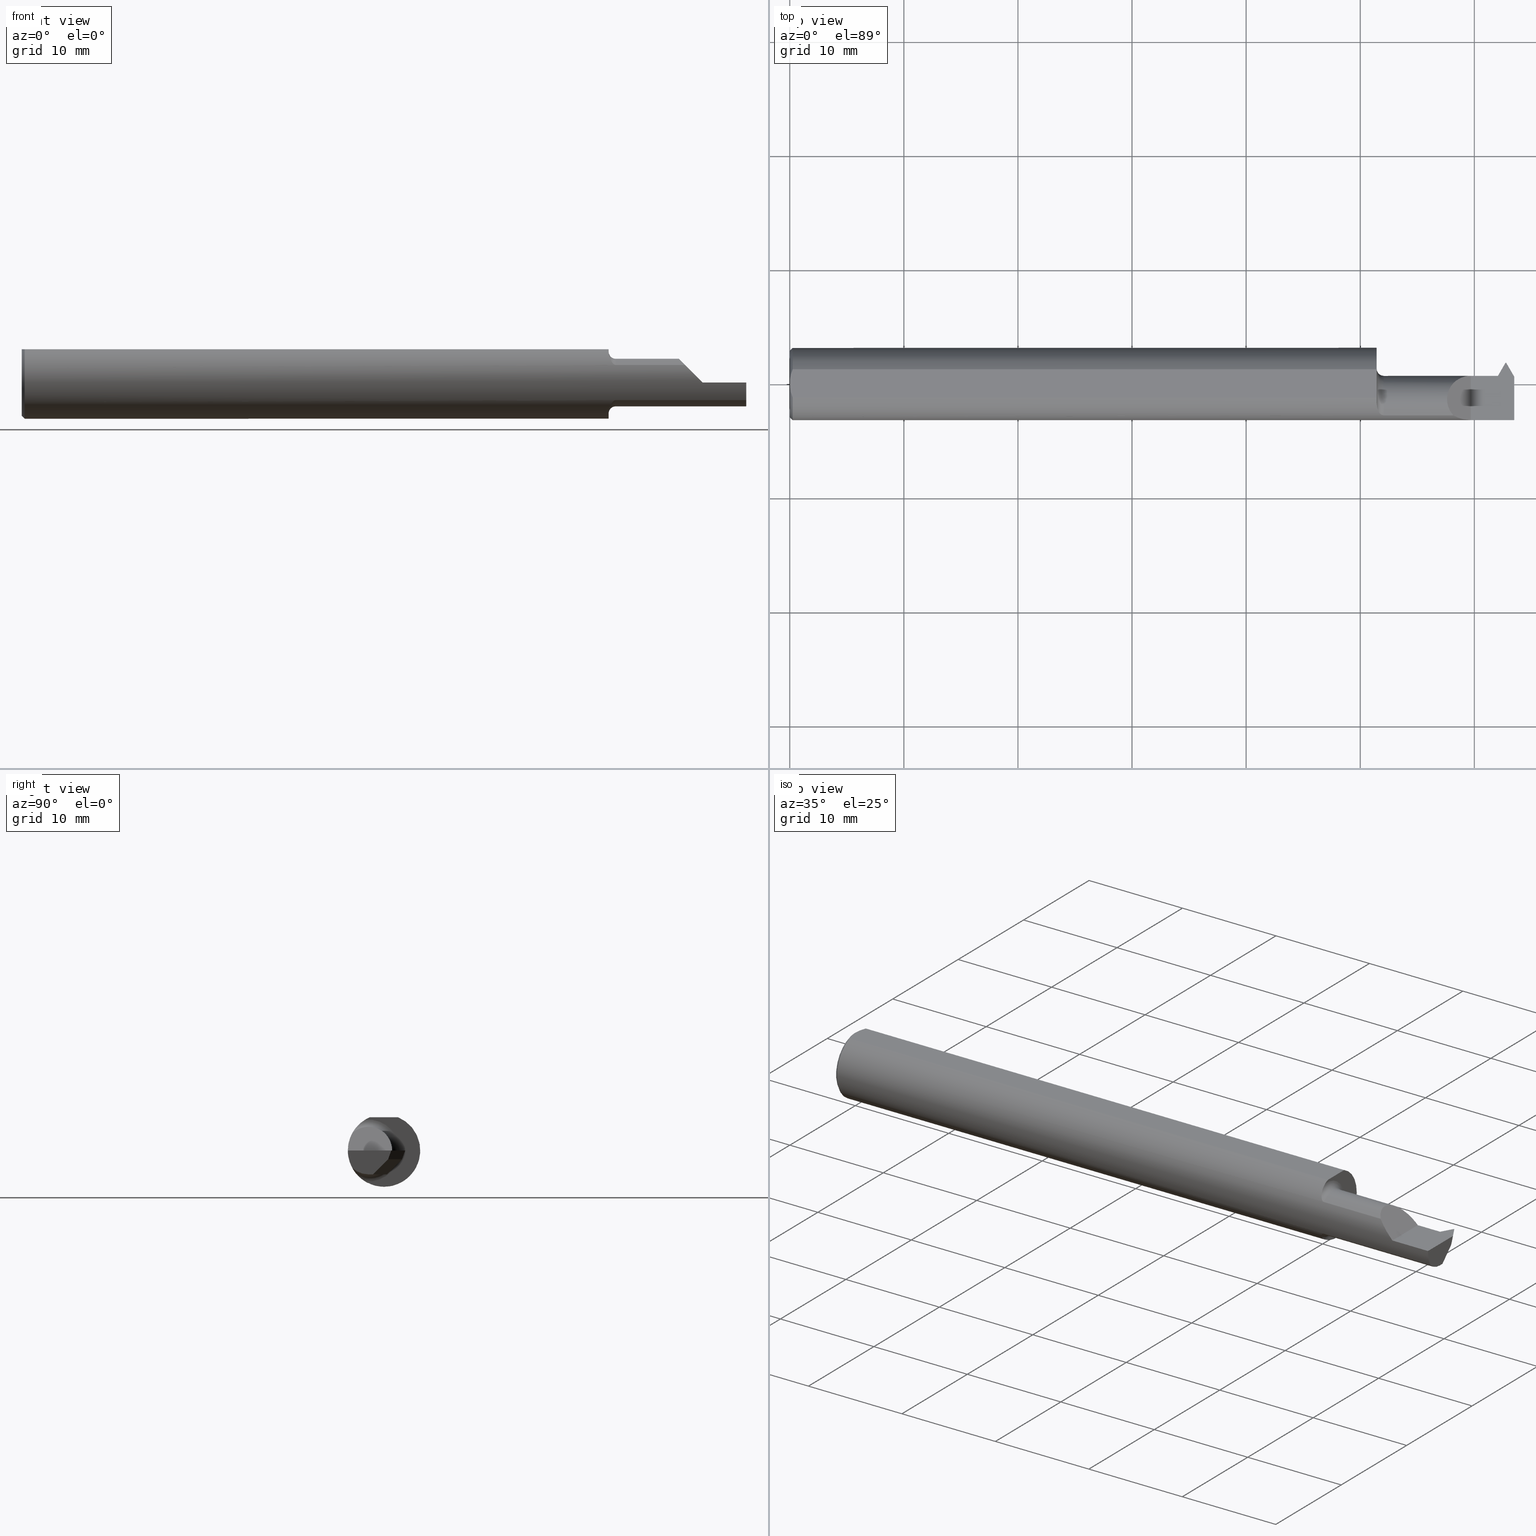
[diagram: canonical four-view strip — front | top / right | iso, engineering-drawing reading convention]
A machine part, canonical four-view strip (front | top / right | iso — engineering-drawing reading convention). The complete STEP part file that produces these views, byte-faithful:
ISO-10303-21;
HEADER;
FILE_DESCRIPTION (( 'STEP AP203' ),
    '1' );
FILE_NAME ('230232-TT200400.STEP',
    '2025-04-24T22:30:51',
    ( '' ),
    ( '' ),
    'SwSTEP 2.0',
    'SolidWorks 2024',
    '' );
FILE_SCHEMA (( 'CONFIG_CONTROL_DESIGN' ));
ENDSEC;

DATA;
#1 = CARTESIAN_POINT ( 'NONE',  ( 2.024999999999999911, 0.02814999999999995284, 5.817072295949924714E-17 ) ) ;
#2 = DIRECTION ( 'NONE',  ( -0.1021978390768674971, 0.1770118497048813744, 0.9788883525469466163 ) ) ;
#3 = CARTESIAN_POINT ( 'NONE',  ( 2.024999999999999911, 0.04895916665957469188, 0.1148499999999999521 ) ) ;
#4 = CC_DESIGN_SECURITY_CLASSIFICATION ( #440, ( #391 ) ) ;
#5 = LINE ( 'NONE', #127, #125 ) ;
#6 = DIRECTION ( 'NONE',  ( -1.000000000000000000, -0.000000000000000000, -0.000000000000000000 ) ) ;
#7 = ADVANCED_FACE ( 'NONE', ( #238 ), #593, .T. ) ;
#8 = VECTOR ( 'NONE', #6, 39.37007874015748143 ) ;
#9 = VECTOR ( 'NONE', #597, 39.37007874015748854 ) ;
#10 = CARTESIAN_POINT ( 'NONE',  ( 2.451234871023850737, -0.007219850294039730811, -0.06745093875106342174 ) ) ;
#11 = LINE ( 'NONE', #331, #278 ) ;
#12 = ORIENTED_EDGE ( 'NONE', *, *, #435, .T. ) ;
#13 = CARTESIAN_POINT ( 'NONE',  ( 2.453251230041400888, -0.03705956632386101651, -0.08200000000000008671 ) ) ;
#14 = CARTESIAN_POINT ( 'NONE',  ( 2.500000000000000000, 0.000000000000000000, 0.000000000000000000 ) ) ;
#15 = VERTEX_POINT ( 'NONE', #468 ) ;
#16 = EDGE_CURVE ( 'NONE', #765, #645, #353, .T. ) ;
#17 = ORIENTED_EDGE ( 'NONE', *, *, #363, .F. ) ;
#18 = CARTESIAN_POINT ( 'NONE',  ( 2.500000000000000000, -0.05384999999999960651, -0.08200000000000007283 ) ) ;
#19 = PLANE ( 'NONE',  #138 ) ;
#20 = ORIENTED_EDGE ( 'NONE', *, *, #344, .T. ) ;
#21 = TOROIDAL_SURFACE ( 'NONE', #396, 0.1070000000000000812, 0.02499999999999993894 ) ;
#22 = ORIENTED_EDGE ( 'NONE', *, *, #344, .F. ) ;
#23 = AXIS2_PLACEMENT_3D ( 'NONE', #324, #134, #621 ) ;
#24 = DIRECTION ( 'NONE',  ( -0.4999999999999901745, 0.000000000000000000, 0.8660254037844443697 ) ) ;
#25 = CARTESIAN_POINT ( 'NONE',  ( 2.033707043473947707, -0.1002470790731815053, -0.07460645910502548828 ) ) ;
#26 = VERTEX_POINT ( 'NONE', #349 ) ;
#27 = ORIENTED_EDGE ( 'NONE', *, *, #606, .T. ) ;
#28 = CARTESIAN_POINT ( 'NONE',  ( 2.289520233285355477, -0.1092232590529245567, 0.06047976671464379284 ) ) ;
#29 = CARTESIAN_POINT ( 'NONE',  ( 2.472290033225403416, 0.06223089297200574271, -0.03000000000000839148 ) ) ;
#30 = VERTEX_POINT ( 'NONE', #607 ) ;
#31 = ORIENTED_EDGE ( 'NONE', *, *, #423, .F. ) ;
#32 = APPROVAL_ROLE ( '' ) ;
#33 = CARTESIAN_POINT ( 'NONE',  ( 2.233393231723701522, -0.04792023988988743100, 0.1166067682762971930 ) ) ;
#34 = EDGE_LOOP ( 'NONE', ( #710, #643, #20, #328, #319, #268, #786, #406, #513, #318, #74, #377, #75 ) ) ;
#35 = ORIENTED_EDGE ( 'NONE', *, *, #657, .T. ) ;
#36 = APPROVAL_STATUS ( 'not_yet_approved' ) ;
#37 = AXIS2_PLACEMENT_3D ( 'NONE', #77, #267, #443 ) ;
#38 = PLANE ( 'NONE',  #571 ) ;
#39 = ORIENTED_EDGE ( 'NONE', *, *, #330, .T. ) ;
#40 = APPROVAL_DATE_TIME ( #334, #654 ) ;
#41 = LINE ( 'NONE', #725, #741 ) ;
#42 = B_SPLINE_CURVE_WITH_KNOTS ( 'NONE', 3,
 ( #481, #728, #204, #694, #383, #447 ),
 .UNSPECIFIED., .F., .F.,
 ( 4, 2, 4 ),
 ( 0.001059891666211653424, 0.001694300407100094883, 0.002328709147988536343 ),
 .UNSPECIFIED. ) ;
#43 = ORIENTED_EDGE ( 'NONE', *, *, #313, .F. ) ;
#44 = VERTEX_POINT ( 'NONE', #715 ) ;
#45 = EDGE_CURVE ( 'NONE', #346, #203, #547, .T. ) ;
#46 = COORDINATED_UNIVERSAL_TIME_OFFSET ( 8, 0, .BEHIND. ) ;
#47 = DIRECTION ( 'NONE',  ( 0.000000000000000000, -0.3420201433256622736, -0.9396926207859106484 ) ) ;
#48 = DIRECTION ( 'NONE',  ( -0.000000000000000000, 1.000000000000000000, -0.000000000000000000 ) ) ;
#49 = EDGE_LOOP ( 'NONE', ( #283, #385, #700 ) ) ;
#50 = PERSON_AND_ORGANIZATION_ROLE ( 'creator' ) ;
#51 = DIRECTION ( 'NONE',  ( -0.4999999999999969469, 0.8660254037844403729, 0.000000000000000000 ) ) ;
#52 = VECTOR ( 'NONE', #308, 39.37007874015748143 ) ;
#53 = DIRECTION ( 'NONE',  ( 0.9947640934854949935, 0.01818544582510317129, 0.1005668328631451197 ) ) ;
#54 = AXIS2_PLACEMENT_3D ( 'NONE', #101, #781, #533 ) ;
#55 = FACE_OUTER_BOUND ( 'NONE', #599, .T. ) ;
#56 = DIRECTION ( 'NONE',  ( 1.860231797550329107E-16, -1.000000000000000000, 0.000000000000000000 ) ) ;
#57 = ADVANCED_FACE ( 'NONE', ( #598 ), #38, .F. ) ;
#58 = DIRECTION ( 'NONE',  ( 0.7745966692414858468, 0.4472135954999558183, -0.4472135954999557628 ) ) ;
#59 = FACE_OUTER_BOUND ( 'NONE', #516, .T. ) ;
#60 = LOCAL_TIME ( 15, 30, 51.00000000000000000, #46 ) ;
#61 = EDGE_CURVE ( 'NONE', #279, #203, #414, .T. ) ;
#62 = CARTESIAN_POINT ( 'NONE',  ( 0.000000000000000000, 0.000000000000000000, 0.000000000000000000 ) ) ;
#63 = DIRECTION ( 'NONE',  ( 0.4999999999999965583, 0.8660254037844405950, -0.000000000000000000 ) ) ;
#64 = LINE ( 'NONE', #189, #52 ) ;
#65 = EDGE_CURVE ( 'NONE', #26, #269, #779, .T. ) ;
#66 = FACE_OUTER_BOUND ( 'NONE', #218, .T. ) ;
#67 = CARTESIAN_POINT ( 'NONE',  ( 0.000000000000000000, 0.000000000000000000, 0.000000000000000000 ) ) ;
#68 = DIRECTION ( 'NONE',  ( -0.01827811026638627781, 0.9998329413882549588, 0.000000000000000000 ) ) ;
#69 = AXIS2_PLACEMENT_3D ( 'NONE', #317, #626, #145 ) ;
#70 = ORIENTED_EDGE ( 'NONE', *, *, #384, .T. ) ;
#71 =( BOUNDED_CURVE ( )  B_SPLINE_CURVE ( 3, ( #446, #197, #693, #28 ),
 .UNSPECIFIED., .F., .F. ) 
 B_SPLINE_CURVE_WITH_KNOTS ( ( 4, 4 ),
 ( 4.712388980384689674, 5.218088401039803870 ),
 .UNSPECIFIED. ) 
 CURVE ( )  GEOMETRIC_REPRESENTATION_ITEM ( )  RATIONAL_B_SPLINE_CURVE ( ( 1.000000000000000000, 0.9788023059027125550, 0.9788023059027125550, 1.000000000000000000 ) ) 
 REPRESENTATION_ITEM ( '' )  );
#72 = CARTESIAN_POINT ( 'NONE',  ( 2.024999999999999911, -0.06535139275765998457, 0.1063800637555461642 ) ) ;
#73 = EDGE_CURVE ( 'NONE', #164, #381, #650, .T. ) ;
#74 = ORIENTED_EDGE ( 'NONE', *, *, #61, .F. ) ;
#75 = ORIENTED_EDGE ( 'NONE', *, *, #330, .F. ) ;
#76 = LINE ( 'NONE', #211, #474 ) ;
#77 = CARTESIAN_POINT ( 'NONE',  ( 2.049999999999999822, -0.05385000000000013387, 0.000000000000000000 ) ) ;
#78 = EDGE_LOOP ( 'NONE', ( #389, #326, #39, #200 ) ) ;
#79 = ADVANCED_FACE ( 'NONE', ( #113 ), #21, .F. ) ;
#80 = DIRECTION ( 'NONE',  ( 0.001253963230750516867, 0.3420198744252525569, 0.9396918819881070473 ) ) ;
#81 = CARTESIAN_POINT ( 'NONE',  ( 2.028216217036756586, -0.08893970397226937108, -0.08781254252886035172 ) ) ;
#82 = ORIENTED_EDGE ( 'NONE', *, *, #675, .T. ) ;
#83 = ORIENTED_EDGE ( 'NONE', *, *, #506, .T. ) ;
#84 = VECTOR ( 'NONE', #114, 39.37007874015748143 ) ;
#85 = CARTESIAN_POINT ( 'NONE',  ( 2.453558178717973437, -0.05385000000000006448, -0.08200000000000008671 ) ) ;
#86 = ORIENTED_EDGE ( 'NONE', *, *, #460, .T. ) ;
#87 = ORIENTED_EDGE ( 'NONE', *, *, #266, .T. ) ;
#88 = COORDINATED_UNIVERSAL_TIME_OFFSET ( 8, 0, .BEHIND. ) ;
#89 = EDGE_CURVE ( 'NONE', #44, #623, #729, .T. ) ;
#90 = CARTESIAN_POINT ( 'NONE',  ( 2.638030381068564800, -0.05384999999999960651, -0.08200000000000007283 ) ) ;
#91 = VERTEX_POINT ( 'NONE', #726 ) ;
#92 = VERTEX_POINT ( 'NONE', #116 ) ;
#93 = CALENDAR_DATE ( 2025, 24, 4 ) ;
#94 = CARTESIAN_POINT ( 'NONE',  ( 0.000000000000000000, -0.04895916665957469188, 0.1148499999999999521 ) ) ;
#95 = APPROVAL_PERSON_ORGANIZATION ( #157, #483, #711 ) ;
#96 = LINE ( 'NONE', #342, #166 ) ;
#97 = ORIENTED_EDGE ( 'NONE', *, *, #65, .F. ) ;
#98 = DATE_TIME_ROLE ( 'classification_date' ) ;
#99 = VECTOR ( 'NONE', #723, 39.37007874015748143 ) ;
#100 = AXIS2_PLACEMENT_3D ( 'NONE', #581, #787, #478 ) ;
#101 = CARTESIAN_POINT ( 'NONE',  ( 2.454384911711299466, -2.391462833681099021, 0.3325315713287227415 ) ) ;
#102 = CARTESIAN_POINT ( 'NONE',  ( 2.024999999999999911, -0.05385000000000014081, 0.000000000000000000 ) ) ;
#103 = EDGE_CURVE ( 'NONE', #143, #30, #661, .T. ) ;
#104 = ORIENTED_EDGE ( 'NONE', *, *, #313, .T. ) ;
#105 = PERSON_AND_ORGANIZATION_ROLE ( 'creator' ) ;
#106 = DIRECTION ( 'NONE',  ( 0.4999999999999948375, -0.8660254037844417052, 0.000000000000000000 ) ) ;
#107 = FACE_OUTER_BOUND ( 'NONE', #412, .T. ) ;
#108 = ADVANCED_FACE ( 'NONE', ( #790 ), #464, .F. ) ;
#109 = VERTEX_POINT ( 'NONE', #665 ) ;
#110 = PERSON_AND_ORGANIZATION ( #350, #433 ) ;
#111 = EDGE_CURVE ( 'NONE', #757, #346, #231, .T. ) ;
#112 = CARTESIAN_POINT ( 'NONE',  ( 2.446976212146491303, 0.02220744610134825839, -0.03064742880798467309 ) ) ;
#113 = FACE_OUTER_BOUND ( 'NONE', #78, .T. ) ;
#114 = DIRECTION ( 'NONE',  ( -0.4999999999999901745, -0.8660254037844443697, 0.000000000000000000 ) ) ;
#115 = VECTOR ( 'NONE', #312, 39.37007874015748143 ) ;
#116 = CARTESIAN_POINT ( 'NONE',  ( 2.289520233285355477, -0.1092232590529245567, 0.06047976671464379284 ) ) ;
#117 = AXIS2_PLACEMENT_3D ( 'NONE', #417, #659, #161 ) ;
#118 = FACE_OUTER_BOUND ( 'NONE', #582, .T. ) ;
#119 = PRODUCT_DEFINITION ( 'UNKNOWN', '', #391, #583 ) ;
#120 = CARTESIAN_POINT ( 'NONE',  ( 2.500000000000000000, 0.000000000000000000, 0.000000000000000000 ) ) ;
#121 = CARTESIAN_POINT ( 'NONE',  ( 0.01000000000000014939, 0.04895916665957469188, 0.1148499999999999521 ) ) ;
#122 = LINE ( 'NONE', #731, #305 ) ;
#123 = CARTESIAN_POINT ( 'NONE',  ( 2.472246112513392990, 0.07421031632221902763, 0.002913195152776099431 ) ) ;
#124 = AXIS2_PLACEMENT_3D ( 'NONE', #555, #245, #486 ) ;
#125 = VECTOR ( 'NONE', #180, 39.37007874015748143 ) ;
#126 = ADVANCED_FACE ( 'NONE', ( #107 ), #788, .T. ) ;
#127 = CARTESIAN_POINT ( 'NONE',  ( 2.469709966774594534, 0.06223089297202252096, -0.02999999999999161324 ) ) ;
#128 = CYLINDRICAL_SURFACE ( 'NONE', #669, 0.1248500000000000026 ) ;
#129 = APPLICATION_CONTEXT ( 'configuration controlled 3d designs of mechanical parts and assemblies' ) ;
#130 = FACE_OUTER_BOUND ( 'NONE', #230, .T. ) ;
#131 =( BOUNDED_CURVE ( )  B_SPLINE_CURVE ( 3, ( #549, #796, #738, #487 ),
 .UNSPECIFIED., .F., .F. ) 
 B_SPLINE_CURVE_WITH_KNOTS ( ( 4, 4 ),
 ( 3.543943011109409458, 3.546790974617836323 ),
 .UNSPECIFIED. ) 
 CURVE ( )  GEOMETRIC_REPRESENTATION_ITEM ( )  RATIONAL_B_SPLINE_CURVE ( ( 1.000000000000000000, 0.9999993240921020154, 0.9999993240921020154, 1.000000000000000000 ) ) 
 REPRESENTATION_ITEM ( '' )  );
#132 = DIRECTION ( 'NONE',  ( 0.000000000000000000, 1.000000000000000000, 0.000000000000000000 ) ) ;
#133 = ORIENTED_EDGE ( 'NONE', *, *, #226, .T. ) ;
#134 = DIRECTION ( 'NONE',  ( 0.000000000000000000, 0.000000000000000000, 1.000000000000000000 ) ) ;
#135 = EDGE_CURVE ( 'NONE', #109, #381, #96, .T. ) ;
#136 = CARTESIAN_POINT ( 'NONE',  ( 2.027023439373509817, -0.08470251846230676673, -0.09191816578021566597 ) ) ;
#137 = ORIENTED_EDGE ( 'NONE', *, *, #61, .T. ) ;
#138 = AXIS2_PLACEMENT_3D ( 'NONE', #14, #496, #745 ) ;
#139 = VECTOR ( 'NONE', #255, 39.37007874015748143 ) ;
#140 = ORIENTED_EDGE ( 'NONE', *, *, #355, .F. ) ;
#141 = CARTESIAN_POINT ( 'NONE',  ( 0.000000000000000000, 0.000000000000000000, 0.000000000000000000 ) ) ;
#142 = CARTESIAN_POINT ( 'NONE',  ( 2.024999999999999911, -0.07054286491584008112, -0.1031908389701643725 ) ) ;
#143 = VERTEX_POINT ( 'NONE', #282 ) ;
#144 = ORIENTED_EDGE ( 'NONE', *, *, #577, .T. ) ;
#145 = DIRECTION ( 'NONE',  ( -0.7071067811865511255, 0.000000000000000000, 0.7071067811865439090 ) ) ;
#146 = EDGE_LOOP ( 'NONE', ( #438, #160, #580, #773, #35, #566 ) ) ;
#147 = ORIENTED_EDGE ( 'NONE', *, *, #169, .F. ) ;
#148 =( CONVERSION_BASED_UNIT ( 'INCH', #633 ) LENGTH_UNIT ( ) NAMED_UNIT ( #286 ) );
#149 = CARTESIAN_POINT ( 'NONE',  ( 2.049999999999999822, -0.1092232590529244457, -0.06047976671464396631 ) ) ;
#150 = VERTEX_POINT ( 'NONE', #655 ) ;
#151 = EDGE_CURVE ( 'NONE', #338, #322, #688, .T. ) ;
#152 = ORIENTED_EDGE ( 'NONE', *, *, #724, .T. ) ;
#153 = AXIS2_PLACEMENT_3D ( 'NONE', #184, #432, #372 ) ;
#154 = CARTESIAN_POINT ( 'NONE',  ( -3.937007874019685528E-05, 0.06223089297201413878, -0.02999999999999999542 ) ) ;
#155 = ORIENTED_EDGE ( 'NONE', *, *, #763, .F. ) ;
#156 = ORIENTED_EDGE ( 'NONE', *, *, #551, .T. ) ;
#157 = PERSON_AND_ORGANIZATION ( #350, #433 ) ;
#158 = LINE ( 'NONE', #418, #795 ) ;
#159 = DIRECTION ( 'NONE',  ( 0.000000000000000000, 0.000000000000000000, -1.000000000000000000 ) ) ;
#160 = ORIENTED_EDGE ( 'NONE', *, *, #251, .T. ) ;
#161 = DIRECTION ( 'NONE',  ( 1.000000000000000000, 0.000000000000000000, 0.000000000000000000 ) ) ;
#162 = LINE ( 'NONE', #172, #263 ) ;
#163 = DIRECTION ( 'NONE',  ( 0.000000000000000000, 0.000000000000000000, 1.000000000000000000 ) ) ;
#164 = VERTEX_POINT ( 'NONE', #241 ) ;
#165 = APPROVAL_STATUS ( 'not_yet_approved' ) ;
#166 = VECTOR ( 'NONE', #588, 39.37007874015748143 ) ;
#167 = CARTESIAN_POINT ( 'NONE',  ( 2.500000000000000000, 0.02508559008996252837, 0.000000000000000000 ) ) ;
#168 = DIRECTION ( 'NONE',  ( -1.000000000000000000, -0.000000000000000000, -0.000000000000000000 ) ) ;
#169 = EDGE_CURVE ( 'NONE', #749, #392, #371, .T. ) ;
#170 = EDGE_LOOP ( 'NONE', ( #632, #575, #769 ) ) ;
#171 = B_SPLINE_CURVE_WITH_KNOTS ( 'NONE', 3,
 ( #775, #722, #586, #233 ),
 .UNSPECIFIED., .F., .F.,
 ( 4, 4 ),
 ( 0.002328709147988536343, 0.003597800360742826626 ),
 .UNSPECIFIED. ) ;
#172 = CARTESIAN_POINT ( 'NONE',  ( 2.500000000000000000, 0.000000000000000000, -0.08200000000000007283 ) ) ;
#173 = VERTEX_POINT ( 'NONE', #553 ) ;
#174 = CARTESIAN_POINT ( 'NONE',  ( 2.289520233285355477, -0.1092232590529245567, 0.06047976671464379284 ) ) ;
#175 = CARTESIAN_POINT ( 'NONE',  ( 2.500000000000000000, 0.000000000000000000, 0.000000000000000000 ) ) ;
#176 = CARTESIAN_POINT ( 'NONE',  ( 2.446901295964723833, -0.02341930401921291788, -0.07614442029541586276 ) ) ;
#177 = VECTOR ( 'NONE', #572, 39.37007874015748143 ) ;
#178 = LINE ( 'NONE', #249, #508 ) ;
#179 = DIRECTION ( 'NONE',  ( 1.000000000000000000, 0.000000000000000000, 0.000000000000000000 ) ) ;
#180 = DIRECTION ( 'NONE',  ( 4.801527401526620407E-15, -0.7071067811865433539, -0.7071067811865516806 ) ) ;
#181 = CARTESIAN_POINT ( 'NONE',  ( 2.427837500586933484, 0.02295711951836851977, -0.02871700526327665773 ) ) ;
#182 = EDGE_CURVE ( 'NONE', #333, #635, #301, .T. ) ;
#183 = LOCAL_TIME ( 15, 30, 51.00000000000000000, #347 ) ;
#184 = CARTESIAN_POINT ( 'NONE',  ( 2.024999999999999911, 0.000000000000000000, 0.000000000000000000 ) ) ;
#185 = CARTESIAN_POINT ( 'NONE',  ( 2.472290033225402972, 0.01023089297201466331, -0.08200000000000007283 ) ) ;
#186 = VECTOR ( 'NONE', #48, 39.37007874015748143 ) ;
#187 = AXIS2_PLACEMENT_3D ( 'NONE', #309, #485, #608 ) ;
#188 = DIRECTION ( 'NONE',  ( -1.000000000000000000, -0.000000000000000000, -0.000000000000000000 ) ) ;
#189 = CARTESIAN_POINT ( 'NONE',  ( 2.433030381068565173, 0.02814999999999999447, 3.269571062426245434E-34 ) ) ;
#190 = ADVANCED_FACE ( 'NONE', ( #59 ), #546, .T. ) ;
#191 = ORIENTED_EDGE ( 'NONE', *, *, #714, .T. ) ;
#192 = CARTESIAN_POINT ( 'NONE',  ( 2.028207506445967478, -0.08891621056625811925, 0.08783733555405218163 ) ) ;
#193 = FACE_OUTER_BOUND ( 'NONE', #502, .T. ) ;
#194 = CC_DESIGN_APPROVAL ( #712, ( #440 ) ) ;
#195 = EDGE_LOOP ( 'NONE', ( #83, #510, #137, #219, #43 ) ) ;
#196 = EDGE_CURVE ( 'NONE', #645, #109, #609, .T. ) ;
#197 = CARTESIAN_POINT ( 'NONE',  ( 2.328727073528534586, -0.1248500000000000026, 0.02127292647146524981 ) ) ;
#198 = CC_DESIGN_DATE_AND_TIME_ASSIGNMENT ( #701, #707, ( #119 ) ) ;
#199 = CARTESIAN_POINT ( 'NONE',  ( 2.427837500586933484, 0.02295711951836851977, -0.02871700526327665773 ) ) ;
#200 = ORIENTED_EDGE ( 'NONE', *, *, #151, .F. ) ;
#201 = AXIS2_PLACEMENT_3D ( 'NONE', #421, #479, #229 ) ;
#202 = AXIS2_PLACEMENT_3D ( 'NONE', #304, #673, #552 ) ;
#203 = VERTEX_POINT ( 'NONE', #121 ) ;
#204 = CARTESIAN_POINT ( 'NONE',  ( 0.004414493321357296045, -0.03313351293251454166, 0.1148499999999999660 ) ) ;
#205 = ORIENTED_EDGE ( 'NONE', *, *, #169, .T. ) ;
#206 = ORIENTED_EDGE ( 'NONE', *, *, #196, .F. ) ;
#207 = DIRECTION ( 'NONE',  ( 0.000000000000000000, 0.000000000000000000, -1.000000000000000000 ) ) ;
#208 = CARTESIAN_POINT ( 'NONE',  ( 2.556730127439881706, -0.7361911692617133518, -0.9791454017888142625 ) ) ;
#209 = EDGE_CURVE ( 'NONE', #501, #279, #681, .T. ) ;
#210 = ORIENTED_EDGE ( 'NONE', *, *, #565, .F. ) ;
#211 = CARTESIAN_POINT ( 'NONE',  ( 2.469746116444452522, 0.07209075587864717527, -0.002910249305106944653 ) ) ;
#212 = CARTESIAN_POINT ( 'NONE',  ( 2.044143490399572105, -0.1083244193956947182, -0.06211342568700094907 ) ) ;
#213 = ORIENTED_EDGE ( 'NONE', *, *, #606, .F. ) ;
#214 = ORIENTED_EDGE ( 'NONE', *, *, #135, .F. ) ;
#215 = CONICAL_SURFACE ( 'NONE', #345, 0.1148500000000000076, 0.7853981633974407295 ) ;
#216 = COORDINATED_UNIVERSAL_TIME_OFFSET ( 8, 0, .BEHIND. ) ;
#217 = LINE ( 'NONE', #718, #9 ) ;
#218 = EDGE_LOOP ( 'NONE', ( #777, #291, #12, #579 ) ) ;
#219 = ORIENTED_EDGE ( 'NONE', *, *, #435, .F. ) ;
#220 = ADVANCED_FACE ( 'NONE', ( #620 ), #743, .F. ) ;
#221 = PERSON_AND_ORGANIZATION ( #350, #433 ) ;
#222 = PLANE ( 'NONE',  #54 ) ;
#223 = CARTESIAN_POINT ( 'NONE',  ( -3.937007874019685528E-05, 0.06223089297201413878, -0.02999999999999999542 ) ) ;
#224 = VERTEX_POINT ( 'NONE', #732 ) ;
#225 = PERSON_AND_ORGANIZATION_ROLE ( 'classification_officer' ) ;
#226 = EDGE_CURVE ( 'NONE', #264, #173, #639, .T. ) ;
#227 = CARTESIAN_POINT ( 'NONE',  ( 2.450332701925785450, -0.01228205133668632335, -0.07095053707884173277 ) ) ;
#228 = CC_DESIGN_PERSON_AND_ORGANIZATION_ASSIGNMENT ( #717, #663, ( #391 ) ) ;
#229 = DIRECTION ( 'NONE',  ( -1.860231797550329354E-16, 1.000000000000000000, 0.000000000000000000 ) ) ;
#230 = EDGE_LOOP ( 'NONE', ( #401, #86, #398, #104 ) ) ;
#231 = CIRCLE ( 'NONE', #303, 0.1248500000000000026 ) ;
#232 = CIRCLE ( 'NONE', #752, 0.08200000000000011446 ) ;
#233 = CARTESIAN_POINT ( 'NONE',  ( 0.01000000000000014939, 0.04895916665957469188, 0.1148499999999999521 ) ) ;
#234 = CARTESIAN_POINT ( 'NONE',  ( 2.024999999999999911, -0.05385000000000014081, 0.000000000000000000 ) ) ;
#235 = VERTEX_POINT ( 'NONE', #181 ) ;
#236 = CALENDAR_DATE ( 2025, 24, 4 ) ;
#237 = CARTESIAN_POINT ( 'NONE',  ( 2.446837138557887759, 0.02271536081068169927, -0.02936361829919980834 ) ) ;
#238 = FACE_OUTER_BOUND ( 'NONE', #629, .T. ) ;
#239 = EDGE_CURVE ( 'NONE', #501, #338, #293, .T. ) ;
#240 = CARTESIAN_POINT ( 'NONE',  ( 2.470999999999999197, 0.06446529606186626737, -0.02999999999999999889 ) ) ;
#241 = CARTESIAN_POINT ( 'NONE',  ( 2.446767348830406696, 0.02295711951836481093, -0.02871700526327581812 ) ) ;
#242 = AXIS2_PLACEMENT_3D ( 'NONE', #234, #477, #405 ) ;
#243 = CARTESIAN_POINT ( 'NONE',  ( 2.350000000000000089, 0.02815000000000001182, 5.817072295949924714E-17 ) ) ;
#244 = VECTOR ( 'NONE', #252, 39.37007874015748143 ) ;
#245 = DIRECTION ( 'NONE',  ( -0.8522042425194527038, -0.4920203488231402744, 0.1779435454738421962 ) ) ;
#246 = EDGE_CURVE ( 'NONE', #164, #235, #306, .T. ) ;
#247 = CARTESIAN_POINT ( 'NONE',  ( 2.244015190534282667, -0.1092232590529245290, -0.06047976671464383447 ) ) ;
#248 = DIRECTION ( 'NONE',  ( -1.000000000000000000, -1.860231797550329354E-16, -0.000000000000000000 ) ) ;
#249 = CARTESIAN_POINT ( 'NONE',  ( 2.443769237886467049, 0.02815000000000001182, 0.000000000000000000 ) ) ;
#250 = FACE_OUTER_BOUND ( 'NONE', #34, .T. ) ;
#251 = EDGE_CURVE ( 'NONE', #91, #561, #488, .T. ) ;
#252 = DIRECTION ( 'NONE',  ( -0.09000871797897593007, 0.6219594709070993543, 0.7778591435708280821 ) ) ;
#253 = CARTESIAN_POINT ( 'NONE',  ( 2.446901295964723833, 0.02272511627620293906, -0.02999999999999999889 ) ) ;
#254 = CONICAL_SURFACE ( 'NONE', #670, 0.1148500000000000076, 0.7853981633974407295 ) ;
#255 = DIRECTION ( 'NONE',  ( -0.09000871797897593007, 0.6219594709070993543, 0.7778591435708280821 ) ) ;
#256 = CARTESIAN_POINT ( 'NONE',  ( 2.350000000000000089, -0.1248500000000000165, 1.836970198721029441E-17 ) ) ;
#257 = LINE ( 'NONE', #29, #587 ) ;
#258 = ORIENTED_EDGE ( 'NONE', *, *, #209, .F. ) ;
#259 = ORIENTED_EDGE ( 'NONE', *, *, #730, .T. ) ;
#260 = CARTESIAN_POINT ( 'NONE',  ( 2.453558178717973437, -0.05385000000000006448, -0.08200000000000008671 ) ) ;
#261 = DIRECTION ( 'NONE',  ( 4.801527401526655906E-15, 0.7071067811865434649, 0.7071067811865516806 ) ) ;
#262 = ORIENTED_EDGE ( 'NONE', *, *, #559, .F. ) ;
#263 = VECTOR ( 'NONE', #357, 39.37007874015748143 ) ;
#264 = VERTEX_POINT ( 'NONE', #492 ) ;
#265 = CARTESIAN_POINT ( 'NONE',  ( 2.039872773867706268, -0.1060950243526073977, 0.06584904124472129583 ) ) ;
#266 = EDGE_CURVE ( 'NONE', #635, #30, #677, .T. ) ;
#267 = DIRECTION ( 'NONE',  ( -1.000000000000000000, -1.860231797550329107E-16, -0.000000000000000000 ) ) ;
#268 = ORIENTED_EDGE ( 'NONE', *, *, #744, .F. ) ;
#269 = VERTEX_POINT ( 'NONE', #185 ) ;
#270 =( LENGTH_UNIT ( ) NAMED_UNIT ( * ) SI_UNIT ( $, .METRE. ) );
#271 = CARTESIAN_POINT ( 'NONE',  ( 2.031574539397730028, -0.09671433139090004905, -0.07916850176471053324 ) ) ;
#272 = EDGE_LOOP ( 'NONE', ( #337, #380, #465, #595 ) ) ;
#273 = ORIENTED_EDGE ( 'NONE', *, *, #251, .F. ) ;
#274 = PERSON_AND_ORGANIZATION ( #350, #433 ) ;
#275 = PLANE ( 'NONE',  #100 ) ;
#276 = EDGE_LOOP ( 'NONE', ( #441, #705, #214, #206, #448, #22, #646, #454 ) ) ;
#277 = EDGE_CURVE ( 'NONE', #235, #109, #64, .T. ) ;
#278 = VECTOR ( 'NONE', #568, 39.37007874015748143 ) ;
#279 = VERTEX_POINT ( 'NONE', #3 ) ;
#280 = DATE_AND_TIME ( #356, #183 ) ;
#281 = LINE ( 'NONE', #404, #84 ) ;
#282 = CARTESIAN_POINT ( 'NONE',  ( 2.469709966774595422, 0.06223089297201390285, -0.02999999999999999889 ) ) ;
#283 = ORIENTED_EDGE ( 'NONE', *, *, #384, .F. ) ;
#284 = CARTESIAN_POINT ( 'NONE',  ( 2.446901295964723833, -0.02341930401921291788, -0.07614442029541586276 ) ) ;
#285 = CARTESIAN_POINT ( 'NONE',  ( 0.01000000000000014939, 0.000000000000000000, 0.000000000000000000 ) ) ;
#286 = DIMENSIONAL_EXPONENTS ( 1.000000000000000000, 0.000000000000000000, 0.000000000000000000, 0.000000000000000000, 0.000000000000000000, 0.000000000000000000, 0.000000000000000000 ) ;
#287 = ORIENTED_EDGE ( 'NONE', *, *, #618, .T. ) ;
#288 = DATE_AND_TIME ( #236, #544 ) ;
#289 = DIRECTION ( 'NONE',  ( 0.000000000000000000, -0.9396926207859107594, 0.3420201433256623291 ) ) ;
#290 = DIRECTION ( 'NONE',  ( -1.000000000000000000, -0.000000000000000000, -0.000000000000000000 ) ) ;
#291 = ORIENTED_EDGE ( 'NONE', *, *, #226, .F. ) ;
#292 = COORDINATED_UNIVERSAL_TIME_OFFSET ( 8, 0, .BEHIND. ) ;
#293 = CIRCLE ( 'NONE', #327, 0.1248500000000000026 ) ;
#294 = VECTOR ( 'NONE', #793, 39.37007874015748143 ) ;
#295 = DIRECTION ( 'NONE',  ( 0.7071067811865530128, 0.000000000000000000, -0.7071067811865421326 ) ) ;
#296 = ADVANCED_FACE ( 'NONE', ( #250 ), #128, .T. ) ;
#297 = CARTESIAN_POINT ( 'NONE',  ( 2.443769237886467049, 0.02815000000000001182, 0.000000000000000000 ) ) ;
#298 = LINE ( 'NONE', #682, #397 ) ;
#299 = DIRECTION ( 'NONE',  ( -1.000000000000000000, -1.860231797550329107E-16, -0.000000000000000000 ) ) ;
#300 = LINE ( 'NONE', #247, #614 ) ;
#301 = LINE ( 'NONE', #362, #411 ) ;
#302 = EDGE_CURVE ( 'NONE', #392, #691, #683, .T. ) ;
#303 = AXIS2_PLACEMENT_3D ( 'NONE', #709, #410, #159 ) ;
#304 = CARTESIAN_POINT ( 'NONE',  ( 2.469749999999999890, 0.07314999999999999281, 0.000000000000000000 ) ) ;
#305 = VECTOR ( 'NONE', #63, 39.37007874015748854 ) ;
#306 = LINE ( 'NONE', #550, #482 ) ;
#307 = PLANE ( 'NONE',  #202 ) ;
#308 = DIRECTION ( 'NONE',  ( 0.1751915364254245655, 0.1751915364254259255, 0.9688218882383892172 ) ) ;
#309 = CARTESIAN_POINT ( 'NONE',  ( 2.500000000000000000, -0.2500000000000000555, 0.000000000000000000 ) ) ;
#310 = DIRECTION ( 'NONE',  ( 1.000000000000000000, 1.860231797550329107E-16, 0.000000000000000000 ) ) ;
#311 = CARTESIAN_POINT ( 'NONE',  ( 2.452452630173280301, -0.02103119801956463211, -0.07699899284797048771 ) ) ;
#312 = DIRECTION ( 'NONE',  ( 1.000000000000000000, 1.860231797550329354E-16, 0.000000000000000000 ) ) ;
#313 = EDGE_CURVE ( 'NONE', #757, #264, #42, .T. ) ;
#314 = VECTOR ( 'NONE', #680, 39.37007874015748143 ) ;
#315 = VERTEX_POINT ( 'NONE', #321 ) ;
#316 = DIRECTION ( 'NONE',  ( -0.7745966692414916199, 0.4472135954999509333, -0.4472135954999509888 ) ) ;
#317 = CARTESIAN_POINT ( 'NONE',  ( 2.350000000000000089, -0.2500000000000000555, 1.836970198721029441E-17 ) ) ;
#318 = ORIENTED_EDGE ( 'NONE', *, *, #45, .T. ) ;
#319 = ORIENTED_EDGE ( 'NONE', *, *, #366, .F. ) ;
#320 = PLANE ( 'NONE',  #720 ) ;
#321 = CARTESIAN_POINT ( 'NONE',  ( 2.446976212146491303, 0.02220744610134825839, -0.03064742880798467309 ) ) ;
#322 = VERTEX_POINT ( 'NONE', #702 ) ;
#323 = ADVANCED_FACE ( 'NONE', ( #514 ), #686, .F. ) ;
#324 = CARTESIAN_POINT ( 'NONE',  ( 2.752883550275615487, 0.1248500000000000026, 0.1148499999999999521 ) ) ;
#325 = CARTESIAN_POINT ( 'NONE',  ( 2.469749999999999890, 0.07314999999999999281, 0.000000000000000000 ) ) ;
#326 = ORIENTED_EDGE ( 'NONE', *, *, #363, .T. ) ;
#327 = AXIS2_PLACEMENT_3D ( 'NONE', #434, #310, #132 ) ;
#328 = ORIENTED_EDGE ( 'NONE', *, *, #792, .T. ) ;
#329 = CARTESIAN_POINT ( 'NONE',  ( 0.000000000000000000, 0.000000000000000000, 0.000000000000000000 ) ) ;
#330 = EDGE_CURVE ( 'NONE', #224, #322, #473, .T. ) ;
#331 = CARTESIAN_POINT ( 'NONE',  ( 2.244015190534282667, -0.1092232590529245290, 0.06047976671464383447 ) ) ;
#332 = VERTEX_POINT ( 'NONE', #379 ) ;
#333 = VERTEX_POINT ( 'NONE', #325 ) ;
#334 = DATE_AND_TIME ( #518, #604 ) ;
#335 = CARTESIAN_POINT ( 'NONE',  ( 2.433030381068565173, 0.02814999999999999447, 0.000000000000000000 ) ) ;
#336 = ADVANCED_FACE ( 'NONE', ( #767 ), #630, .F. ) ;
#337 = ORIENTED_EDGE ( 'NONE', *, *, #73, .F. ) ;
#338 = VERTEX_POINT ( 'NONE', #72 ) ;
#339 = APPROVAL_DATE_TIME ( #352, #483 ) ;
#340 = CARTESIAN_POINT ( 'NONE',  ( 2.446901295964723833, -0.05385000000000006448, 0.000000000000000000 ) ) ;
#341 = CC_DESIGN_PERSON_AND_ORGANIZATION_ASSIGNMENT ( #585, #225, ( #440 ) ) ;
#342 = CARTESIAN_POINT ( 'NONE',  ( 2.443769237886467049, 0.02815000000000001182, 0.000000000000000000 ) ) ;
#343 = VECTOR ( 'NONE', #290, 39.37007874015748143 ) ;
#344 = EDGE_CURVE ( 'NONE', #623, #765, #563, .T. ) ;
#345 = AXIS2_PLACEMENT_3D ( 'NONE', #141, #378, #207 ) ;
#346 = VERTEX_POINT ( 'NONE', #644 ) ;
#347 = COORDINATED_UNIVERSAL_TIME_OFFSET ( 8, 0, .BEHIND. ) ;
#348 = LINE ( 'NONE', #94, #656 ) ;
#349 = CARTESIAN_POINT ( 'NONE',  ( 2.469709966774595866, 0.01023089297201467546, -0.08200000000000007283 ) ) ;
#350 = PERSON ( 'UNSPECIFIED', 'UNSPECIFIED', 'UNSPECIFIED', ('UNSPECIFIED'), ('UNSPECIFIED'), ('UNSPECIFIED') ) ;
#351 = EDGE_LOOP ( 'NONE', ( #687, #574, #570, #87 ) ) ;
#352 = DATE_AND_TIME ( #93, #60 ) ;
#353 = LINE ( 'NONE', #419, #186 ) ;
#354 = ORIENTED_EDGE ( 'NONE', *, *, #73, .T. ) ;
#355 = EDGE_CURVE ( 'NONE', #235, #109, #373, .T. ) ;
#356 = CALENDAR_DATE ( 2025, 24, 4 ) ;
#357 = DIRECTION ( 'NONE',  ( 0.000000000000000000, 1.000000000000000000, 0.000000000000000000 ) ) ;
#358 = CARTESIAN_POINT ( 'NONE',  ( 2.454384911711299466, -2.391462833681099021, 0.3325315713287227415 ) ) ;
#359 = AXIS2_PLACEMENT_3D ( 'NONE', #240, #58, #727 ) ;
#360 = CARTESIAN_POINT ( 'NONE',  ( 2.452918392213565113, -0.01885296730677266108, -0.08200000000000011446 ) ) ;
#361 = LINE ( 'NONE', #742, #314 ) ;
#362 = CARTESIAN_POINT ( 'NONE',  ( 2.024999999999999911, 0.07314999999999989566, 5.817072295949924714E-17 ) ) ;
#363 = EDGE_CURVE ( 'NONE', #150, #224, #624, .T. ) ;
#364 = CARTESIAN_POINT ( 'NONE',  ( 2.556730127439881706, -0.7361911692617133518, -0.9791454017888142625 ) ) ;
#365 = DIRECTION ( 'NONE',  ( 0.000000000000000000, 0.000000000000000000, -1.000000000000000000 ) ) ;
#366 = EDGE_CURVE ( 'NONE', #150, #92, #11, .T. ) ;
#367 = CC_DESIGN_PERSON_AND_ORGANIZATION_ASSIGNMENT ( #221, #466, ( #491 ) ) ;
#368 = AXIS2_PLACEMENT_3D ( 'NONE', #285, #529, #541 ) ;
#369 = DIRECTION ( 'NONE',  ( 1.000000000000000000, 0.000000000000000000, 0.000000000000000000 ) ) ;
#370 = APPROVAL_PERSON_ORGANIZATION ( #274, #654, #32 ) ;
#371 = LINE ( 'NONE', #794, #8 ) ;
#372 = DIRECTION ( 'NONE',  ( 0.000000000000000000, 1.000000000000000000, 0.000000000000000000 ) ) ;
#373 =( BOUNDED_CURVE ( )  B_SPLINE_CURVE ( 3, ( #199, #698, #507, #335 ),
 .UNSPECIFIED., .F., .F. ) 
 B_SPLINE_CURVE_WITH_KNOTS ( ( 4, 4 ),
 ( 1.213003830136022865, 1.570796326794863917 ),
 .UNSPECIFIED. ) 
 CURVE ( )  GEOMETRIC_REPRESENTATION_ITEM ( )  RATIONAL_B_SPLINE_CURVE ( ( 1.000000000000000000, 0.9893604650975269532, 0.9893604650975269532, 1.000000000000000000 ) ) 
 REPRESENTATION_ITEM ( '' )  );
#374 = ADVANCED_FACE ( 'NONE', ( #193 ), #512, .F. ) ;
#375 = CARTESIAN_POINT ( 'NONE',  ( 2.453619808909676792, -0.05722123996687587810, -0.08200000000000007283 ) ) ;
#376 = APPROVAL_PERSON_ORGANIZATION ( #110, #712, #532 ) ;
#377 = ORIENTED_EDGE ( 'NONE', *, *, #714, .F. ) ;
#378 = DIRECTION ( 'NONE',  ( 1.000000000000000000, 0.000000000000000000, 0.000000000000000000 ) ) ;
#379 = CARTESIAN_POINT ( 'NONE',  ( 2.446901295964723833, 0.02229442029541578787, -0.03043069598078715007 ) ) ;
#380 = ORIENTED_EDGE ( 'NONE', *, *, #246, .T. ) ;
#381 = VERTEX_POINT ( 'NONE', #690 ) ;
#382 = FACE_OUTER_BOUND ( 'NONE', #195, .T. ) ;
#383 = CARTESIAN_POINT ( 'NONE',  ( -7.933430635897561254E-17, -0.008414813278457880172, 0.1148499999999999660 ) ) ;
#384 = EDGE_CURVE ( 'NONE', #315, #15, #748, .T. ) ;
#385 = ORIENTED_EDGE ( 'NONE', *, *, #471, .T. ) ;
#386 = ORIENTED_EDGE ( 'NONE', *, *, #763, .T. ) ;
#387 = CARTESIAN_POINT ( 'NONE',  ( 2.024999999999999911, -0.06535139275765998457, 0.1063800637555461642 ) ) ;
#388 = CARTESIAN_POINT ( 'NONE',  ( 2.046893101175498497, -0.1092232590529244735, -0.06047976671464399406 ) ) ;
#389 = ORIENTED_EDGE ( 'NONE', *, *, #744, .T. ) ;
#390 = CC_DESIGN_PERSON_AND_ORGANIZATION_ASSIGNMENT ( #408, #50, ( #391 ) ) ;
#391 = PRODUCT_DEFINITION_FORMATION_WITH_SPECIFIED_SOURCE ( 'ANY', '', #491, .NOT_KNOWN. ) ;
#392 = VERTEX_POINT ( 'NONE', #85 ) ;
#393 = ADVANCED_FACE ( 'NONE', ( #452 ), #19, .F. ) ;
#394 = CARTESIAN_POINT ( 'NONE',  ( 2.024999999999999911, -0.06535139275765998457, -0.1063800637555461642 ) ) ;
#395 = ORIENTED_EDGE ( 'NONE', *, *, #730, .F. ) ;
#396 = AXIS2_PLACEMENT_3D ( 'NONE', #719, #299, #56 ) ;
#397 = VECTOR ( 'NONE', #605, 39.37007874015748854 ) ;
#398 = ORIENTED_EDGE ( 'NONE', *, *, #111, .F. ) ;
#399 = CALENDAR_DATE ( 2025, 24, 4 ) ;
#400 = CARTESIAN_POINT ( 'NONE',  ( 3.749399456654640735E-32, -0.1248499999999999888, 3.061616997868381169E-16 ) ) ;
#401 = ORIENTED_EDGE ( 'NONE', *, *, #724, .F. ) ;
#402 = EDGE_LOOP ( 'NONE', ( #658, #457 ) ) ;
#403 = APPROVAL_STATUS ( 'not_yet_approved' ) ;
#404 = CARTESIAN_POINT ( 'NONE',  ( 2.484042229742608576, 0.03505510062005176564, -0.08200000000000007283 ) ) ;
#405 = DIRECTION ( 'NONE',  ( 0.000000000000000000, -1.000000000000000000, 0.000000000000000000 ) ) ;
#406 = ORIENTED_EDGE ( 'NONE', *, *, #506, .F. ) ;
#407 = LOCAL_TIME ( 15, 30, 51.00000000000000000, #216 ) ;
#408 = PERSON_AND_ORGANIZATION ( #350, #433 ) ;
#409 = CARTESIAN_POINT ( 'NONE',  ( -3.937007874019685528E-05, 0.07314999999999999281, 5.817072295949929645E-17 ) ) ;
#410 = DIRECTION ( 'NONE',  ( 1.000000000000000000, 0.000000000000000000, 0.000000000000000000 ) ) ;
#411 = VECTOR ( 'NONE', #558, 39.37007874015748143 ) ;
#412 = EDGE_LOOP ( 'NONE', ( #662, #530, #155, #147, #768, #287, #17, #696, #692, #416, #140, #522, #637, #762 ) ) ;
#413 = CARTESIAN_POINT ( 'NONE',  ( 2.451234871023850737, -0.007219850294039730811, -0.06745093875106342174 ) ) ;
#414 = LINE ( 'NONE', #776, #343 ) ;
#415 = EDGE_CURVE ( 'NONE', #269, #30, #257, .T. ) ;
#416 = ORIENTED_EDGE ( 'NONE', *, *, #196, .T. ) ;
#417 = CARTESIAN_POINT ( 'NONE',  ( 0.000000000000000000, 0.000000000000000000, 0.000000000000000000 ) ) ;
#418 = CARTESIAN_POINT ( 'NONE',  ( 2.541472960791670843, -0.1095974525891196122, -0.08200000000000007283 ) ) ;
#419 = CARTESIAN_POINT ( 'NONE',  ( 2.350000000000000089, -0.2500000000000000555, 1.836970198721029441E-17 ) ) ;
#420 = FACE_OUTER_BOUND ( 'NONE', #402, .T. ) ;
#421 = CARTESIAN_POINT ( 'NONE',  ( 2.024999999999999911, 0.1248499999999999471, 0.000000000000000000 ) ) ;
#422 = VECTOR ( 'NONE', #68, 39.37007874015748143 ) ;
#423 = EDGE_CURVE ( 'NONE', #749, #584, #162, .T. ) ;
#424 = DIRECTION ( 'NONE',  ( -1.000000000000000000, -1.860231797550329354E-16, -0.000000000000000000 ) ) ;
#425 = CARTESIAN_POINT ( 'NONE',  ( 2.024999999999999911, 0.1248499999999998639, 0.1148499999999999521 ) ) ;
#426 = B_SPLINE_CURVE_WITH_KNOTS ( 'NONE', 3,
 ( #387, #638, #451, #685, #192, #455, #689, #576, #265, #504, #562, #511 ),
 .UNSPECIFIED., .F., .F.,
 ( 4, 2, 2, 2, 2, 4 ),
 ( 3.030490085918875282E-05, 0.0004889370798616815561, 0.0009475692588641743391, 0.001406201437866666905, 0.001635517527367912755, 0.001864833616869158604 ),
 .UNSPECIFIED. ) ;
#427 = ADVANCED_FACE ( 'NONE', ( #713 ), #222, .F. ) ;
#428 = DIRECTION ( 'NONE',  ( -1.000000000000000000, -0.000000000000000000, -0.000000000000000000 ) ) ;
#429 = CARTESIAN_POINT ( 'NONE',  ( 2.500000000000000000, -0.05385000000000006448, 0.000000000000000000 ) ) ;
#430 = PRODUCT_DEFINITION_SHAPE ( 'NONE', 'NONE',  #119 ) ;
#431 = DIRECTION ( 'NONE',  ( 0.000000000000000000, 0.3401001459858907228, 0.9403892229818331394 ) ) ;
#432 = DIRECTION ( 'NONE',  ( 1.000000000000000000, 1.860231797550329107E-16, 0.000000000000000000 ) ) ;
#433 = ORGANIZATION ( 'UNSPECIFIED', 'UNSPECIFIED', '' ) ;
#434 = CARTESIAN_POINT ( 'NONE',  ( 2.024999999999999911, 0.000000000000000000, 0.000000000000000000 ) ) ;
#435 = EDGE_CURVE ( 'NONE', #264, #203, #171, .T. ) ;
#436 = DIRECTION ( 'NONE',  ( 0.000000000000000000, 0.000000000000000000, -1.000000000000000000 ) ) ;
#437 = DIRECTION ( 'NONE',  ( 0.000000000000000000, 0.000000000000000000, 1.000000000000000000 ) ) ;
#438 = ORIENTED_EDGE ( 'NONE', *, *, #551, .F. ) ;
#439 = PLANE ( 'NONE',  #23 ) ;
#440 = SECURITY_CLASSIFICATION ( '', '', #596 ) ;
#441 = ORIENTED_EDGE ( 'NONE', *, *, #182, .F. ) ;
#442 = VECTOR ( 'NONE', #535, 39.37007874015748143 ) ;
#443 = DIRECTION ( 'NONE',  ( 0.000000000000000000, -1.000000000000000000, 0.000000000000000000 ) ) ;
#444 = CIRCLE ( 'NONE', #548, 0.1148500000000000076 ) ;
#445 = ORIENTED_EDGE ( 'NONE', *, *, #737, .F. ) ;
#446 = CARTESIAN_POINT ( 'NONE',  ( 2.350000000000000089, -0.1248500000000000165, 1.836970198721029441E-17 ) ) ;
#447 = CARTESIAN_POINT ( 'NONE',  ( 0.000000000000000000, 0.000000000000000000, 0.1148499999999999521 ) ) ;
#448 = ORIENTED_EDGE ( 'NONE', *, *, #16, .F. ) ;
#449 = ADVANCED_FACE ( 'NONE', ( #667 ), #770, .F. ) ;
#450 = EDGE_LOOP ( 'NONE', ( #498, #517, #386 ) ) ;
#451 = CARTESIAN_POINT ( 'NONE',  ( 2.025400300771547535, -0.07542150831050724313, 0.09967330204894504775 ) ) ;
#452 = FACE_OUTER_BOUND ( 'NONE', #146, .T. ) ;
#453 = ORIENTED_EDGE ( 'NONE', *, *, #65, .T. ) ;
#454 = ORIENTED_EDGE ( 'NONE', *, *, #577, .F. ) ;
#455 = CARTESIAN_POINT ( 'NONE',  ( 2.031572284412210827, -0.09671242829710831324, 0.07917194093600959937 ) ) ;
#456 = CARTESIAN_POINT ( 'NONE',  ( 2.025408339284914483, -0.07550530485030230998, -0.09961131850206352001 ) ) ;
#457 = ORIENTED_EDGE ( 'NONE', *, *, #277, .F. ) ;
#458 = AXIS2_PLACEMENT_3D ( 'NONE', #253, #179, #622 ) ;
#459 = CIRCLE ( 'NONE', #153, 0.1248500000000000026 ) ;
#460 = EDGE_CURVE ( 'NONE', #173, #346, #476, .T. ) ;
#461 = ORIENTED_EDGE ( 'NONE', *, *, #515, .T. ) ;
#462 = CARTESIAN_POINT ( 'NONE',  ( 2.350000000000000089, 0.02815000000000001182, 5.817072295949924714E-17 ) ) ;
#463 = ADVANCED_BREP_SHAPE_REPRESENTATION ( '230232-TT200400', ( #557, #117 ), #785 ) ;
#464 = PLANE ( 'NONE',  #653 ) ;
#465 = ORIENTED_EDGE ( 'NONE', *, *, #277, .T. ) ;
#466 = PERSON_AND_ORGANIZATION_ROLE ( 'design_owner' ) ;
#467 = DIRECTION ( 'NONE',  ( -1.000000000000000000, -0.000000000000000000, -0.000000000000000000 ) ) ;
#468 = CARTESIAN_POINT ( 'NONE',  ( 2.446901295964723833, 0.02272511627620293906, -0.02999999999999999889 ) ) ;
#469 = VERTEX_POINT ( 'NONE', #648 ) ;
#470 = CARTESIAN_POINT ( 'NONE',  ( 2.024999999999999911, -0.04895916665957478209, 0.1148499999999999521 ) ) ;
#471 = EDGE_CURVE ( 'NONE', #315, #164, #791, .T. ) ;
#472 = DIRECTION ( 'NONE',  ( 0.000000000000000000, -0.1779435454738421407, -0.9840406976462907629 ) ) ;
#473 = B_SPLINE_CURVE_WITH_KNOTS ( 'NONE', 3,
 ( #149, #388, #212, #578, #634, #25, #271, #81, #136, #456, #142, #394 ),
 .UNSPECIFIED., .F., .F.,
 ( 4, 2, 2, 2, 2, 4 ),
 ( 1.963893730206510626E-07, 0.0002326901895015428721, 0.0004651839896300651056, 0.0009301715898871100062, 0.001395159190144154961, 0.001860146790401200241 ),
 .UNSPECIFIED. ) ;
#474 = VECTOR ( 'NONE', #80, 39.37007874015748143 ) ;
#475 = EDGE_LOOP ( 'NONE', ( #213, #628, #144, #273 ) ) ;
#476 = LINE ( 'NONE', #664, #537 ) ;
#477 = DIRECTION ( 'NONE',  ( -1.000000000000000000, -1.860231797550329107E-16, -0.000000000000000000 ) ) ;
#478 = DIRECTION ( 'NONE',  ( 0.1779435454738421407, 0.000000000000000000, 0.9840406976462907629 ) ) ;
#479 = DIRECTION ( 'NONE',  ( 1.000000000000000000, 1.860231797550329354E-16, 0.000000000000000000 ) ) ;
#480 = PLANE ( 'NONE',  #359 ) ;
#481 = CARTESIAN_POINT ( 'NONE',  ( 0.01000000000000014939, -0.04895916665957469188, 0.1148499999999999521 ) ) ;
#482 = VECTOR ( 'NONE', #248, 39.37007874015748143 ) ;
#483 = APPROVAL ( #403, 'UNSPECIFIED' ) ;
#484 = AXIS2_PLACEMENT_3D ( 'NONE', #90, #640, #500 ) ;
#485 = DIRECTION ( 'NONE',  ( -1.224646799147352961E-16, 0.000000000000000000, -1.000000000000000000 ) ) ;
#486 = DIRECTION ( 'NONE',  ( 0.4999999999999948375, -0.8660254037844417052, 0.000000000000000000 ) ) ;
#487 = CARTESIAN_POINT ( 'NONE',  ( 2.446901295964723833, 0.02229442029541578787, -0.03043069598078715007 ) ) ;
#488 = LINE ( 'NONE', #736, #783 ) ;
#489 = APPLICATION_CONTEXT ( 'configuration controlled 3d designs of mechanical parts and assemblies' ) ;
#490 = LINE ( 'NONE', #120, #294 ) ;
#491 = PRODUCT ( '230232-TT200400', '230232-TT200400', '', ( #647 ) ) ;
#492 = CARTESIAN_POINT ( 'NONE',  ( 0.000000000000000000, 0.000000000000000000, 0.1148499999999999521 ) ) ;
#493 = EDGE_CURVE ( 'NONE', #332, #591, #217, .T. ) ;
#494 = PLANE ( 'NONE',  #187 ) ;
#495 = DIRECTION ( 'NONE',  ( -1.000000000000000000, -0.000000000000000000, -0.000000000000000000 ) ) ;
#496 = DIRECTION ( 'NONE',  ( -1.000000000000000000, 0.000000000000000000, -0.000000000000000000 ) ) ;
#497 = EDGE_CURVE ( 'NONE', #584, #269, #158, .T. ) ;
#498 = ORIENTED_EDGE ( 'NONE', *, *, #675, .F. ) ;
#499 = PLANE ( 'NONE',  #641 ) ;
#500 = DIRECTION ( 'NONE',  ( 1.000000000000000000, 0.000000000000000000, -0.000000000000000000 ) ) ;
#501 = VERTEX_POINT ( 'NONE', #470 ) ;
#502 = EDGE_LOOP ( 'NONE', ( #751, #31, #205, #520, #538, #453 ) ) ;
#503 = CC_DESIGN_PERSON_AND_ORGANIZATION_ASSIGNMENT ( #600, #105, ( #119 ) ) ;
#504 = CARTESIAN_POINT ( 'NONE',  ( 2.044142011591955743, -0.1083236330372055328, 0.06211474020593012874 ) ) ;
#505 = CLOSED_SHELL ( 'NONE', ( #754, #393, #126, #374, #336, #220, #590, #427, #108, #57, #296, #323, #612, #782, #594, #772, #79, #7, #449, #527, #735, #190, #627 ) ) ;
#506 = EDGE_CURVE ( 'NONE', #757, #501, #348, .T. ) ;
#507 = CARTESIAN_POINT ( 'NONE',  ( 2.431252431409448356, 0.02815000000000004304, -0.009832190419034547713 ) ) ;
#508 = VECTOR ( 'NONE', #2, 39.37007874015748143 ) ;
#509 = ORIENTED_EDGE ( 'NONE', *, *, #415, .F. ) ;
#510 = ORIENTED_EDGE ( 'NONE', *, *, #209, .T. ) ;
#511 = CARTESIAN_POINT ( 'NONE',  ( 2.049999999999999822, -0.1092232590529244457, 0.06047976671464398019 ) ) ;
#512 = PLANE ( 'NONE',  #484 ) ;
#513 = ORIENTED_EDGE ( 'NONE', *, *, #111, .T. ) ;
#514 = FACE_OUTER_BOUND ( 'NONE', #170, .T. ) ;
#515 = EDGE_CURVE ( 'NONE', #26, #691, #281, .T. ) ;
#516 = EDGE_LOOP ( 'NONE', ( #746, #262 ) ) ;
#517 = ORIENTED_EDGE ( 'NONE', *, *, #302, .F. ) ;
#518 = CALENDAR_DATE ( 2025, 24, 4 ) ;
#519 = CARTESIAN_POINT ( 'NONE',  ( 2.266883813472912124, 0.02815000000000000141, 0.08311618652708713251 ) ) ;
#520 = ORIENTED_EDGE ( 'NONE', *, *, #302, .T. ) ;
#521 = AXIS2_PLACEMENT_3D ( 'NONE', #154, #760, #755 ) ;
#522 = ORIENTED_EDGE ( 'NONE', *, *, #246, .F. ) ;
#523 = APPLICATION_PROTOCOL_DEFINITION ( 'international standard', 'config_control_design', 1994, #129 ) ;
#524 = LINE ( 'NONE', #660, #679 ) ;
#525 = DIRECTION ( 'NONE',  ( 0.1005834662396478951, 0.000000000000000000, -0.9949286237309776793 ) ) ;
#526 = ORIENTED_EDGE ( 'NONE', *, *, #493, .F. ) ;
#527 = ADVANCED_FACE ( 'NONE', ( #420 ), #275, .F. ) ;
#528 = CARTESIAN_POINT ( 'NONE',  ( 2.448882081099467367, -0.01770465614405487484, -0.07386059291250963998 ) ) ;
#529 = DIRECTION ( 'NONE',  ( 1.000000000000000000, 0.000000000000000000, 0.000000000000000000 ) ) ;
#530 = ORIENTED_EDGE ( 'NONE', *, *, #565, .T. ) ;
#531 = CC_DESIGN_APPROVAL ( #483, ( #391 ) ) ;
#532 = APPROVAL_ROLE ( '' ) ;
#533 = DIRECTION ( 'NONE',  ( 0.1005834662396478951, 0.000000000000000000, -0.9949286237309776793 ) ) ;
#534 = EDGE_CURVE ( 'NONE', #92, #645, #759, .T. ) ;
#535 = DIRECTION ( 'NONE',  ( 1.000000000000000000, -0.000000000000000000, -0.000000000000000000 ) ) ;
#536 = VECTOR ( 'NONE', #602, 39.37007874015748143 ) ;
#537 = VECTOR ( 'NONE', #295, 39.37007874015748143 ) ;
#538 = ORIENTED_EDGE ( 'NONE', *, *, #515, .F. ) ;
#539 = APPROVAL_DATE_TIME ( #280, #712 ) ;
#540 = DIRECTION ( 'NONE',  ( 1.000000000000000000, 0.000000000000000000, 0.000000000000000000 ) ) ;
#541 = DIRECTION ( 'NONE',  ( 0.000000000000000000, 0.000000000000000000, -1.000000000000000000 ) ) ;
#542 = FACE_OUTER_BOUND ( 'NONE', #564, .T. ) ;
#543 = DIRECTION ( 'NONE',  ( 1.564557598595814537E-15, -0.9840406976462907629, 0.1779435454738421407 ) ) ;
#544 = LOCAL_TIME ( 15, 30, 51.00000000000000000, #292 ) ;
#545 = CARTESIAN_POINT ( 'NONE',  ( 2.472249999999999837, 0.07314999999999999281, 0.000000000000000000 ) ) ;
#546 = PLANE ( 'NONE',  #458 ) ;
#547 = CIRCLE ( 'NONE', #368, 0.1248500000000000026 ) ;
#548 = AXIS2_PLACEMENT_3D ( 'NONE', #62, #188, #436 ) ;
#549 = CARTESIAN_POINT ( 'NONE',  ( 2.446976212146491303, 0.02220744610134825839, -0.03064742880798467309 ) ) ;
#550 = CARTESIAN_POINT ( 'NONE',  ( 2.024999999999999911, 0.02295711951836735057, -0.02871700526327963451 ) ) ;
#551 = EDGE_CURVE ( 'NONE', #91, #584, #41, .T. ) ;
#552 = DIRECTION ( 'NONE',  ( 0.4999999999999965028, 0.8660254037844405950, 0.000000000000000000 ) ) ;
#553 = CARTESIAN_POINT ( 'NONE',  ( 0.000000000000000000, 0.000000000000000000, -0.1148500000000000076 ) ) ;
#554 = DIRECTION ( 'NONE',  ( 0.000000000000000000, 0.000000000000000000, 1.000000000000000000 ) ) ;
#555 = CARTESIAN_POINT ( 'NONE',  ( 2.472249999999999837, 0.07314999999999999281, 0.000000000000000000 ) ) ;
#556 = CC_DESIGN_APPROVAL ( #654, ( #119 ) ) ;
#557 = MANIFOLD_SOLID_BREP ( 'Cut-Sweep1', #505 ) ;
#558 = DIRECTION ( 'NONE',  ( 1.000000000000000000, 1.860231797550329354E-16, 0.000000000000000000 ) ) ;
#559 = EDGE_CURVE ( 'NONE', #332, #591, #232, .T. ) ;
#560 =( BOUNDED_CURVE ( )  B_SPLINE_CURVE ( 3, ( #260, #13, #311, #10 ),
 .UNSPECIFIED., .F., .T. ) 
 B_SPLINE_CURVE_WITH_KNOTS ( ( 4, 4 ),
 ( 3.320488901919210534, 3.925365243094474987 ),
 .UNSPECIFIED. ) 
 CURVE ( )  GEOMETRIC_REPRESENTATION_ITEM ( )  RATIONAL_B_SPLINE_CURVE ( ( 1.000000000000000000, 0.9697420810547360270, 0.9697420810547360270, 1.000000000000000000 ) ) 
 REPRESENTATION_ITEM ( '' )  );
#561 = VERTEX_POINT ( 'NONE', #167 ) ;
#562 = CARTESIAN_POINT ( 'NONE',  ( 2.046904167968482735, -0.1092232590529394892, 0.06047976671461692544 ) ) ;
#563 = LINE ( 'NONE', #400, #177 ) ;
#564 = EDGE_LOOP ( 'NONE', ( #395, #642, #354, #699, #445 ) ) ;
#565 = EDGE_CURVE ( 'NONE', #591, #469, #733, .T. ) ;
#566 = ORIENTED_EDGE ( 'NONE', *, *, #423, .T. ) ;
#567 = CARTESIAN_POINT ( 'NONE',  ( 2.446901295964723833, 0.02272511627620293906, -0.02999999999999999889 ) ) ;
#568 = DIRECTION ( 'NONE',  ( 1.000000000000000000, 1.860231797550329354E-16, 0.000000000000000000 ) ) ;
#569 = ORIENTED_EDGE ( 'NONE', *, *, #706, .F. ) ;
#570 = ORIENTED_EDGE ( 'NONE', *, *, #182, .T. ) ;
#571 = AXIS2_PLACEMENT_3D ( 'NONE', #668, #543, #472 ) ;
#572 = DIRECTION ( 'NONE',  ( -1.000000000000000000, -0.000000000000000000, -0.000000000000000000 ) ) ;
#573 = AXIS2_PLACEMENT_3D ( 'NONE', #409, #289, #47 ) ;
#574 = ORIENTED_EDGE ( 'NONE', *, *, #737, .T. ) ;
#575 = ORIENTED_EDGE ( 'NONE', *, *, #792, .F. ) ;
#576 = CARTESIAN_POINT ( 'NONE',  ( 2.038167052038310167, -0.1047260336402097841, 0.06802262465471423103 ) ) ;
#577 = EDGE_CURVE ( 'NONE', #635, #561, #524, .T. ) ;
#578 = CARTESIAN_POINT ( 'NONE',  ( 2.039871114993082823, -0.1060941439957360927, -0.06585051326907756519 ) ) ;
#579 = ORIENTED_EDGE ( 'NONE', *, *, #45, .F. ) ;
#580 = ORIENTED_EDGE ( 'NONE', *, *, #636, .T. ) ;
#581 = CARTESIAN_POINT ( 'NONE',  ( 2.433030381068565173, 0.02814999999999999447, 0.000000000000000000 ) ) ;
#582 = EDGE_LOOP ( 'NONE', ( #771, #756, #27, #156 ) ) ;
#583 = DESIGN_CONTEXT ( 'detailed design', #489, 'design' ) ;
#584 = VERTEX_POINT ( 'NONE', #671 ) ;
#585 = PERSON_AND_ORGANIZATION ( #350, #433 ) ;
#586 = CARTESIAN_POINT ( 'NONE',  ( 0.003881058084116530311, 0.03335534922718986356, 0.1148499999999999521 ) ) ;
#587 = VECTOR ( 'NONE', #261, 39.37007874015748143 ) ;
#588 = DIRECTION ( 'NONE',  ( 1.000000000000000000, 1.589931800928611612E-15, -0.000000000000000000 ) ) ;
#589 = AXIS2_PLACEMENT_3D ( 'NONE', #429, #615, #554 ) ;
#590 = ADVANCED_FACE ( 'NONE', ( #542 ), #307, .F. ) ;
#591 = VERTEX_POINT ( 'NONE', #176 ) ;
#592 = SHAPE_DEFINITION_REPRESENTATION ( #430, #463 ) ;
#593 = PLANE ( 'NONE',  #201 ) ;
#594 = ADVANCED_FACE ( 'NONE', ( #66 ), #254, .T. ) ;
#595 = ORIENTED_EDGE ( 'NONE', *, *, #135, .T. ) ;
#596 = SECURITY_CLASSIFICATION_LEVEL ( 'unclassified' ) ;
#597 = DIRECTION ( 'NONE',  ( 0.000000000000000000, -0.7071067811865474617, -0.7071067811865474617 ) ) ;
#598 = FACE_OUTER_BOUND ( 'NONE', #272, .T. ) ;
#599 = EDGE_LOOP ( 'NONE', ( #716, #461, #82, #210, #526, #569, #70, #259 ) ) ;
#600 = PERSON_AND_ORGANIZATION ( #350, #433 ) ;
#601 = CARTESIAN_POINT ( 'NONE',  ( 2.446767348830406696, 0.02295711951836481093, -0.02871700526327581812 ) ) ;
#602 = DIRECTION ( 'NONE',  ( -0.1021978390768674971, 0.1770118497048813744, 0.9788883525469466163 ) ) ;
#603 = AXIS2_PLACEMENT_3D ( 'NONE', #175, #168, #163 ) ;
#604 = LOCAL_TIME ( 15, 30, 51.00000000000000000, #88 ) ;
#605 = DIRECTION ( 'NONE',  ( 0.4999999999999900635, 0.8660254037844443697, 0.000000000000000000 ) ) ;
#606 = EDGE_CURVE ( 'NONE', #30, #91, #361, .T. ) ;
#607 = CARTESIAN_POINT ( 'NONE',  ( 2.472290033225404748, 0.06223089297201414571, -0.03000000000000002318 ) ) ;
#608 = DIRECTION ( 'NONE',  ( -1.000000000000000000, 0.000000000000000000, 1.224646799147352961E-16 ) ) ;
#609 = LINE ( 'NONE', #1, #115 ) ;
#610 = CARTESIAN_POINT ( 'NONE',  ( 2.500000000000000000, -0.1248500000000000026, 0.000000000000000000 ) ) ;
#611 = DIRECTION ( 'NONE',  ( 0.000000000000000000, -1.000000000000000000, 0.000000000000000000 ) ) ;
#612 = ADVANCED_FACE ( 'NONE', ( #789 ), #494, .F. ) ;
#613 = VECTOR ( 'NONE', #672, 39.37007874015748143 ) ;
#614 = VECTOR ( 'NONE', #424, 39.37007874015748143 ) ;
#615 = DIRECTION ( 'NONE',  ( 1.000000000000000000, 0.000000000000000000, 0.000000000000000000 ) ) ;
#616 = DIRECTION ( 'NONE',  ( 0.001253963230749836205, -0.3420198744252525569, -0.9396918819881070473 ) ) ;
#617 = PRODUCT_RELATED_PRODUCT_CATEGORY ( 'detail', '', ( #491 ) ) ;
#618 = EDGE_CURVE ( 'NONE', #44, #224, #300, .T. ) ;
#619 = DIRECTION ( 'NONE',  ( 0.000000000000000000, 0.000000000000000000, -1.000000000000000000 ) ) ;
#620 = FACE_OUTER_BOUND ( 'NONE', #475, .T. ) ;
#621 = DIRECTION ( 'NONE',  ( 1.000000000000000000, 0.000000000000000000, -0.000000000000000000 ) ) ;
#622 = DIRECTION ( 'NONE',  ( 0.000000000000000000, 0.000000000000000000, -1.000000000000000000 ) ) ;
#623 = VERTEX_POINT ( 'NONE', #610 ) ;
#624 = CIRCLE ( 'NONE', #37, 0.08200000000000014222 ) ;
#625 =( NAMED_UNIT ( * ) PLANE_ANGLE_UNIT ( ) SI_UNIT ( $, .RADIAN. ) );
#626 = DIRECTION ( 'NONE',  ( -0.7071067811865439090, 0.000000000000000000, -0.7071067811865511255 ) ) ;
#627 = ADVANCED_FACE ( 'NONE', ( #118 ), #480, .T. ) ;
#628 = ORIENTED_EDGE ( 'NONE', *, *, #266, .F. ) ;
#629 = EDGE_LOOP ( 'NONE', ( #191, #258, #651, #780 ) ) ;
#630 = PLANE ( 'NONE',  #521 ) ;
#631 = EDGE_LOOP ( 'NONE', ( #509, #97, #684, #721 ) ) ;
#632 = ORIENTED_EDGE ( 'NONE', *, *, #534, .F. ) ;
#633 = LENGTH_MEASURE_WITH_UNIT ( LENGTH_MEASURE( 0.02539999999999999897 ), #270 );
#634 = CARTESIAN_POINT ( 'NONE',  ( 2.038158879394964984, -0.1047178258151588714, -0.06803468955078945113 ) ) ;
#635 = VERTEX_POINT ( 'NONE', #545 ) ;
#636 = EDGE_CURVE ( 'NONE', #561, #623, #490, .T. ) ;
#637 = ORIENTED_EDGE ( 'NONE', *, *, #471, .F. ) ;
#638 = CARTESIAN_POINT ( 'NONE',  ( 2.024999999999999911, -0.07054241148902899716, 0.1031911175192888053 ) ) ;
#639 = CIRCLE ( 'NONE', #678, 0.1148500000000000076 ) ;
#640 = DIRECTION ( 'NONE',  ( 0.000000000000000000, 0.000000000000000000, 1.000000000000000000 ) ) ;
#641 = AXIS2_PLACEMENT_3D ( 'NONE', #567, #316, #24 ) ;
#642 = ORIENTED_EDGE ( 'NONE', *, *, #695, .T. ) ;
#643 = ORIENTED_EDGE ( 'NONE', *, *, #89, .T. ) ;
#644 = CARTESIAN_POINT ( 'NONE',  ( 0.01000000000000014939, 0.000000000000000000, -0.1248500000000000026 ) ) ;
#645 = VERTEX_POINT ( 'NONE', #243 ) ;
#646 = ORIENTED_EDGE ( 'NONE', *, *, #636, .F. ) ;
#647 = MECHANICAL_CONTEXT ( 'NONE', #129, 'mechanical' ) ;
#648 = CARTESIAN_POINT ( 'NONE',  ( 2.451234871023850737, -0.007219850294039730811, -0.06745093875106342174 ) ) ;
#649 = EDGE_CURVE ( 'NONE', #143, #26, #5, .T. ) ;
#650 = LINE ( 'NONE', #297, #536 ) ;
#651 = ORIENTED_EDGE ( 'NONE', *, *, #239, .T. ) ;
#652 = CARTESIAN_POINT ( 'NONE',  ( 2.446906763363936310, 0.02246545638879336726, -0.03000712701777952587 ) ) ;
#653 = AXIS2_PLACEMENT_3D ( 'NONE', #358, #53, #525 ) ;
#654 = APPROVAL ( #165, 'UNSPECIFIED' ) ;
#655 = CARTESIAN_POINT ( 'NONE',  ( 2.049999999999999822, -0.1092232590529244457, 0.06047976671464398019 ) ) ;
#656 = VECTOR ( 'NONE', #540, 39.37007874015748143 ) ;
#657 = EDGE_CURVE ( 'NONE', #44, #749, #703, .T. ) ;
#658 = ORIENTED_EDGE ( 'NONE', *, *, #355, .T. ) ;
#659 = DIRECTION ( 'NONE',  ( 0.000000000000000000, 0.000000000000000000, 1.000000000000000000 ) ) ;
#660 = CARTESIAN_POINT ( 'NONE',  ( 2.472249999999999837, 0.07314999999999999281, 0.000000000000000000 ) ) ;
#661 = LINE ( 'NONE', #223, #442 ) ;
#662 = ORIENTED_EDGE ( 'NONE', *, *, #559, .T. ) ;
#663 = PERSON_AND_ORGANIZATION_ROLE ( 'design_supplier' ) ;
#664 = CARTESIAN_POINT ( 'NONE',  ( 0.000000000000000000, 0.000000000000000000, -0.1148500000000000076 ) ) ;
#665 = CARTESIAN_POINT ( 'NONE',  ( 2.433030381068565173, 0.02814999999999999447, 0.000000000000000000 ) ) ;
#666 = EDGE_CURVE ( 'NONE', #381, #333, #122, .T. ) ;
#667 = FACE_OUTER_BOUND ( 'NONE', #351, .T. ) ;
#668 = CARTESIAN_POINT ( 'NONE',  ( 2.443769237886467049, 0.02815000000000001182, 0.000000000000000000 ) ) ;
#669 = AXIS2_PLACEMENT_3D ( 'NONE', #67, #495, #437 ) ;
#670 = AXIS2_PLACEMENT_3D ( 'NONE', #734, #369, #619 ) ;
#671 = CARTESIAN_POINT ( 'NONE',  ( 2.500000000000000000, -0.03776417735763284989, -0.08200000000000007283 ) ) ;
#672 = DIRECTION ( 'NONE',  ( -1.860231797550329354E-16, 1.000000000000000000, 0.000000000000000000 ) ) ;
#673 = DIRECTION ( 'NONE',  ( 0.8522042425194517046, -0.4920203488231419953, 0.1779435454738421407 ) ) ;
#674 = CARTESIAN_POINT ( 'NONE',  ( 0.000000000000000000, 0.000000000000000000, 0.000000000000000000 ) ) ;
#675 = EDGE_CURVE ( 'NONE', #691, #469, #676, .T. ) ;
#676 = LINE ( 'NONE', #364, #244 ) ;
#677 = LINE ( 'NONE', #123, #740 ) ;
#678 = AXIS2_PLACEMENT_3D ( 'NONE', #674, #428, #365 ) ;
#679 = VECTOR ( 'NONE', #106, 39.37007874015748143 ) ;
#680 = DIRECTION ( 'NONE',  ( 0.4999999999999970024, -0.8660254037844403729, 0.000000000000000000 ) ) ;
#681 = LINE ( 'NONE', #425, #613 ) ;
#682 = CARTESIAN_POINT ( 'NONE',  ( 2.446901295964723833, 0.02272511627620293906, -0.02999999999999999889 ) ) ;
#683 = LINE ( 'NONE', #375, #422 ) ;
#684 = ORIENTED_EDGE ( 'NONE', *, *, #649, .F. ) ;
#685 = CARTESIAN_POINT ( 'NONE',  ( 2.026996939049467539, -0.08458882217984092788, 0.09202120527030382968 ) ) ;
#686 = PLANE ( 'NONE',  #69 ) ;
#687 = ORIENTED_EDGE ( 'NONE', *, *, #103, .F. ) ;
#688 = CIRCLE ( 'NONE', #750, 0.1070000000000000812 ) ;
#689 = CARTESIAN_POINT ( 'NONE',  ( 2.033690689866804124, -0.1002306550648288386, 0.07463060118330314130 ) ) ;
#690 = CARTESIAN_POINT ( 'NONE',  ( 2.443769237886467049, 0.02815000000000001182, 0.000000000000000000 ) ) ;
#691 = VERTEX_POINT ( 'NONE', #360 ) ;
#692 = ORIENTED_EDGE ( 'NONE', *, *, #534, .T. ) ;
#693 = CARTESIAN_POINT ( 'NONE',  ( 2.308130552538913083, -0.1195282781184591053, 0.04186944746108621496 ) ) ;
#694 = CARTESIAN_POINT ( 'NONE',  ( 0.0009329797661891488150, -0.01671851415607274530, 0.1148499999999999244 ) ) ;
#695 = EDGE_CURVE ( 'NONE', #15, #164, #178, .T. ) ;
#696 = ORIENTED_EDGE ( 'NONE', *, *, #366, .T. ) ;
#697 = DIRECTION ( 'NONE',  ( 0.000000000000000000, 0.000000000000000000, -1.000000000000000000 ) ) ;
#698 = CARTESIAN_POINT ( 'NONE',  ( 2.429502856586511328, 0.02640042517706308114, -0.01950746593837246121 ) ) ;
#699 = ORIENTED_EDGE ( 'NONE', *, *, #666, .T. ) ;
#700 = ORIENTED_EDGE ( 'NONE', *, *, #695, .F. ) ;
#701 = DATE_AND_TIME ( #399, #407 ) ;
#702 = CARTESIAN_POINT ( 'NONE',  ( 2.024999999999999911, -0.06535139275765998457, -0.1063800637555461642 ) ) ;
#703 = CIRCLE ( 'NONE', #589, 0.08200000000000005895 ) ;
#704 = EDGE_LOOP ( 'NONE', ( #133, #152 ) ) ;
#705 = ORIENTED_EDGE ( 'NONE', *, *, #666, .F. ) ;
#706 = EDGE_CURVE ( 'NONE', #315, #332, #131, .T. ) ;
#707 = DATE_TIME_ROLE ( 'creation_date' ) ;
#708 = DIRECTION ( 'NONE',  ( 0.000000000000000000, -0.7071067811865474617, -0.7071067811865474617 ) ) ;
#709 = CARTESIAN_POINT ( 'NONE',  ( 0.01000000000000014939, 0.000000000000000000, 0.000000000000000000 ) ) ;
#710 = ORIENTED_EDGE ( 'NONE', *, *, #618, .F. ) ;
#711 = APPROVAL_ROLE ( '' ) ;
#712 = APPROVAL ( #36, 'UNSPECIFIED' ) ;
#713 = FACE_OUTER_BOUND ( 'NONE', #450, .T. ) ;
#714 = EDGE_CURVE ( 'NONE', #322, #279, #459, .T. ) ;
#715 = CARTESIAN_POINT ( 'NONE',  ( 2.500000000000000000, -0.1092232590529245290, -0.06047976671464384835 ) ) ;
#716 = ORIENTED_EDGE ( 'NONE', *, *, #649, .T. ) ;
#717 = PERSON_AND_ORGANIZATION ( #350, #433 ) ;
#718 = CARTESIAN_POINT ( 'NONE',  ( 2.446901295964723833, 0.02272511627620293906, -0.02999999999999999889 ) ) ;
#719 = CARTESIAN_POINT ( 'NONE',  ( 2.049999999999999822, -0.05385000000000013387, 0.000000000000000000 ) ) ;
#720 = AXIS2_PLACEMENT_3D ( 'NONE', #329, #753, #697 ) ;
#721 = ORIENTED_EDGE ( 'NONE', *, *, #103, .T. ) ;
#722 = CARTESIAN_POINT ( 'NONE',  ( -8.474402044719765530E-17, 0.01683325733139112365, 0.1148499999999999521 ) ) ;
#723 = DIRECTION ( 'NONE',  ( 1.000000000000000000, -0.000000000000000000, -0.000000000000000000 ) ) ;
#724 = EDGE_CURVE ( 'NONE', #173, #264, #444, .T. ) ;
#725 = CARTESIAN_POINT ( 'NONE',  ( 2.500000000000000000, 0.01423582264236719803, -0.02999999999999999889 ) ) ;
#726 = CARTESIAN_POINT ( 'NONE',  ( 2.500000000000000000, 0.01423582264236719803, -0.02999999999999999889 ) ) ;
#727 = DIRECTION ( 'NONE',  ( -0.4999999999999969469, 0.000000000000000000, -0.8660254037844403729 ) ) ;
#728 = CARTESIAN_POINT ( 'NONE',  ( 0.006957100361671281381, -0.04119951620459590125, 0.1148499999999999521 ) ) ;
#729 = CIRCLE ( 'NONE', #603, 0.1248500000000000026 ) ;
#730 = EDGE_CURVE ( 'NONE', #15, #143, #298, .T. ) ;
#731 = CARTESIAN_POINT ( 'NONE',  ( 2.469749999999999890, 0.07314999999999999281, 0.000000000000000000 ) ) ;
#732 = CARTESIAN_POINT ( 'NONE',  ( 2.049999999999999822, -0.1092232590529244457, -0.06047976671464396631 ) ) ;
#733 =( BOUNDED_CURVE ( )  B_SPLINE_CURVE ( 3, ( #284, #528, #227, #413 ),
 .UNSPECIFIED., .F., .F. ) 
 B_SPLINE_CURVE_WITH_KNOTS ( ( 4, 4 ),
 ( 2.736394332561749465, 2.961070831367609735 ),
 .UNSPECIFIED. ) 
 CURVE ( )  GEOMETRIC_REPRESENTATION_ITEM ( )  RATIONAL_B_SPLINE_CURVE ( ( 1.000000000000000000, 0.9957977946417082560, 0.9957977946417082560, 1.000000000000000000 ) ) 
 REPRESENTATION_ITEM ( '' )  );
#734 = CARTESIAN_POINT ( 'NONE',  ( 0.000000000000000000, 0.000000000000000000, 0.000000000000000000 ) ) ;
#735 = ADVANCED_FACE ( 'NONE', ( #55 ), #499, .T. ) ;
#736 = CARTESIAN_POINT ( 'NONE',  ( 2.500000000000000000, 0.02218398731359117609, -0.008023036780428160347 ) ) ;
#737 = EDGE_CURVE ( 'NONE', #143, #333, #76, .T. ) ;
#738 = CARTESIAN_POINT ( 'NONE',  ( 2.446926351246418996, 0.02226553178175631059, -0.03050298151534015789 ) ) ;
#739 = DIRECTION ( 'NONE',  ( -1.000000000000000000, -1.860231797550329107E-16, -0.000000000000000000 ) ) ;
#740 = VECTOR ( 'NONE', #616, 39.37007874015748854 ) ;
#741 = VECTOR ( 'NONE', #708, 39.37007874015748854 ) ;
#742 = CARTESIAN_POINT ( 'NONE',  ( 2.470999999999999197, 0.06446529606186626737, -0.02999999999999999889 ) ) ;
#743 = PLANE ( 'NONE',  #124 ) ;
#744 = EDGE_CURVE ( 'NONE', #338, #150, #426, .T. ) ;
#745 = DIRECTION ( 'NONE',  ( -0.000000000000000000, 0.000000000000000000, 1.000000000000000000 ) ) ;
#746 = ORIENTED_EDGE ( 'NONE', *, *, #493, .T. ) ;
#747 = FACE_OUTER_BOUND ( 'NONE', #704, .T. ) ;
#748 = LINE ( 'NONE', #208, #139 ) ;
#749 = VERTEX_POINT ( 'NONE', #18 ) ;
#750 = AXIS2_PLACEMENT_3D ( 'NONE', #102, #739, #611 ) ;
#751 = ORIENTED_EDGE ( 'NONE', *, *, #497, .F. ) ;
#752 = AXIS2_PLACEMENT_3D ( 'NONE', #340, #467, #778 ) ;
#753 = DIRECTION ( 'NONE',  ( 1.000000000000000000, 0.000000000000000000, 0.000000000000000000 ) ) ;
#754 = ADVANCED_FACE ( 'NONE', ( #130 ), #215, .T. ) ;
#755 = DIRECTION ( 'NONE',  ( 0.000000000000000000, -0.7071067811865433539, -0.7071067811865516806 ) ) ;
#756 = ORIENTED_EDGE ( 'NONE', *, *, #415, .T. ) ;
#757 = VERTEX_POINT ( 'NONE', #758 ) ;
#758 = CARTESIAN_POINT ( 'NONE',  ( 0.01000000000000014939, -0.04895916665957469188, 0.1148499999999999521 ) ) ;
#759 =( BOUNDED_CURVE ( )  B_SPLINE_CURVE ( 3, ( #174, #33, #519, #462 ),
 .UNSPECIFIED., .F., .F. ) 
 B_SPLINE_CURVE_WITH_KNOTS ( ( 4, 4 ),
 ( 5.541836096877577056, 7.853981633974482790 ),
 .UNSPECIFIED. ) 
 CURVE ( )  GEOMETRIC_REPRESENTATION_ITEM ( )  RATIONAL_B_SPLINE_CURVE ( ( 1.000000000000000000, 0.6019579590817382142, 0.6019579590817382142, 1.000000000000000000 ) ) 
 REPRESENTATION_ITEM ( '' )  );
#760 = DIRECTION ( 'NONE',  ( 0.000000000000000000, -0.7071067811865516806, 0.7071067811865433539 ) ) ;
#761 = CC_DESIGN_DATE_AND_TIME_ASSIGNMENT ( #288, #98, ( #440 ) ) ;
#762 = ORIENTED_EDGE ( 'NONE', *, *, #706, .T. ) ;
#763 = EDGE_CURVE ( 'NONE', #392, #469, #560, .T. ) ;
#764 = UNCERTAINTY_MEASURE_WITH_UNIT (LENGTH_MEASURE( 1.000000000000000082E-05 ), #148, 'distance_accuracy_value', 'NONE');
#765 = VERTEX_POINT ( 'NONE', #256 ) ;
#766 =( NAMED_UNIT ( * ) SI_UNIT ( $, .STERADIAN. ) SOLID_ANGLE_UNIT ( ) );
#767 = FACE_OUTER_BOUND ( 'NONE', #631, .T. ) ;
#768 = ORIENTED_EDGE ( 'NONE', *, *, #657, .F. ) ;
#769 = ORIENTED_EDGE ( 'NONE', *, *, #16, .T. ) ;
#770 = PLANE ( 'NONE',  #573 ) ;
#771 = ORIENTED_EDGE ( 'NONE', *, *, #497, .T. ) ;
#772 = ADVANCED_FACE ( 'NONE', ( #747 ), #320, .F. ) ;
#773 = ORIENTED_EDGE ( 'NONE', *, *, #89, .F. ) ;
#774 = APPLICATION_PROTOCOL_DEFINITION ( 'international standard', 'config_control_design', 1994, #489 ) ;
#775 = CARTESIAN_POINT ( 'NONE',  ( 0.000000000000000000, 0.000000000000000000, 0.1148499999999999521 ) ) ;
#776 = CARTESIAN_POINT ( 'NONE',  ( 0.000000000000000000, 0.04895916665957469188, 0.1148499999999999521 ) ) ;
#777 = ORIENTED_EDGE ( 'NONE', *, *, #460, .F. ) ;
#778 = DIRECTION ( 'NONE',  ( 0.000000000000000000, 0.000000000000000000, -1.000000000000000000 ) ) ;
#779 = LINE ( 'NONE', #784, #99 ) ;
#780 = ORIENTED_EDGE ( 'NONE', *, *, #151, .T. ) ;
#781 = DIRECTION ( 'NONE',  ( 0.9947640934854949935, 0.01818544582510317129, 0.1005668328631451197 ) ) ;
#782 = ADVANCED_FACE ( 'NONE', ( #382 ), #439, .T. ) ;
#783 = VECTOR ( 'NONE', #431, 39.37007874015748143 ) ;
#784 = CARTESIAN_POINT ( 'NONE',  ( -3.937007874019685528E-05, 0.01023089297201466331, -0.08200000000000007283 ) ) ;
#785 =( GEOMETRIC_REPRESENTATION_CONTEXT ( 3 ) GLOBAL_UNCERTAINTY_ASSIGNED_CONTEXT ( ( #764 ) ) GLOBAL_UNIT_ASSIGNED_CONTEXT ( ( #148, #625, #766 ) ) REPRESENTATION_CONTEXT ( 'NONE', 'WORKASPACE' ) );
#786 = ORIENTED_EDGE ( 'NONE', *, *, #239, .F. ) ;
#787 = DIRECTION ( 'NONE',  ( -0.9840406976462907629, -5.973888012331113253E-15, 0.1779435454738421407 ) ) ;
#788 = CYLINDRICAL_SURFACE ( 'NONE', #242, 0.08200000000000011446 ) ;
#789 = FACE_OUTER_BOUND ( 'NONE', #276, .T. ) ;
#790 = FACE_OUTER_BOUND ( 'NONE', #49, .T. ) ;
#791 =( BOUNDED_CURVE ( )  B_SPLINE_CURVE ( 3, ( #112, #652, #237, #601 ),
 .UNSPECIFIED., .F., .F. ) 
 B_SPLINE_CURVE_WITH_KNOTS ( ( 4, 4 ),
 ( 4.508237422836275599, 4.533492732055259822 ),
 .UNSPECIFIED. ) 
 CURVE ( )  GEOMETRIC_REPRESENTATION_ITEM ( )  RATIONAL_B_SPLINE_CURVE ( ( 1.000000000000000000, 0.9999468481526492258, 0.9999468481526492258, 1.000000000000000000 ) ) 
 REPRESENTATION_ITEM ( '' )  );
#792 = EDGE_CURVE ( 'NONE', #765, #92, #71, .T. ) ;
#793 = DIRECTION ( 'NONE',  ( 0.000000000000000000, -1.000000000000000000, 0.000000000000000000 ) ) ;
#794 = CARTESIAN_POINT ( 'NONE',  ( 2.638030381068564800, -0.05384999999999960651, -0.08200000000000007283 ) ) ;
#795 = VECTOR ( 'NONE', #51, 39.37007874015748143 ) ;
#796 = CARTESIAN_POINT ( 'NONE',  ( 2.446951323323887095, 0.02223654036413834356, -0.03057522583990323825 ) ) ;
ENDSEC;
END-ISO-10303-21;
